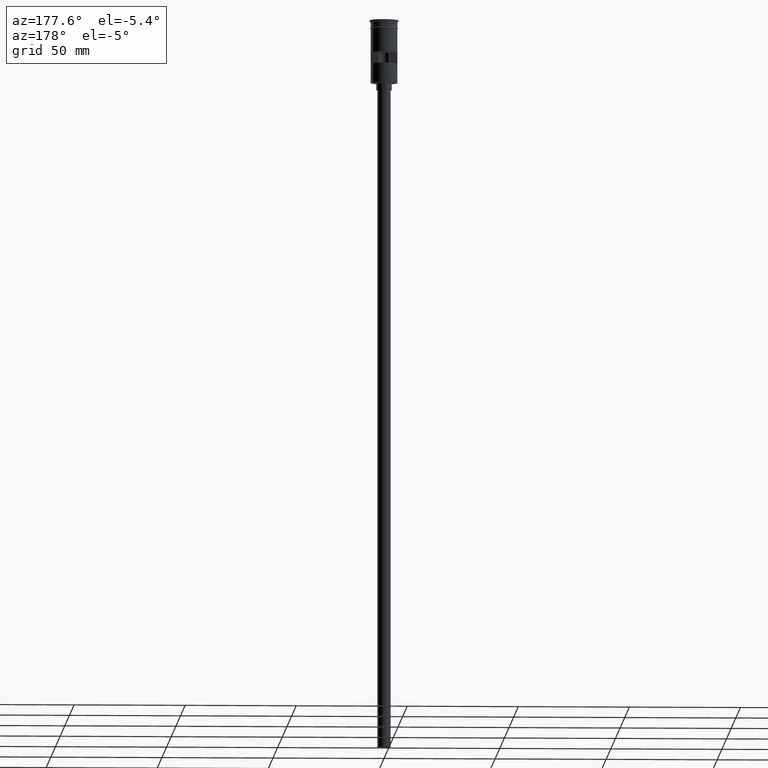
[diagram: clean part render]
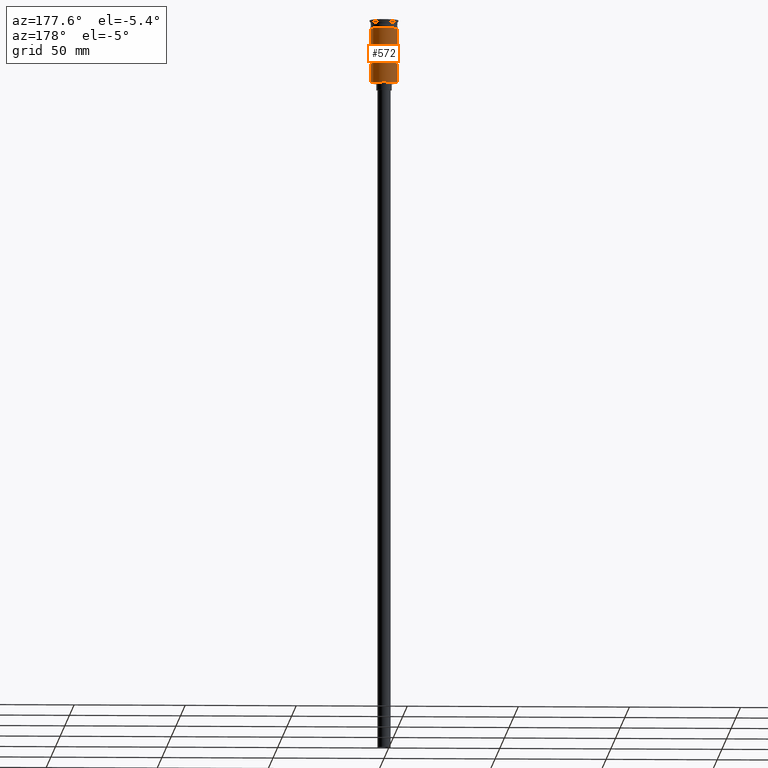
[diagram: same view with one face highlighted and labeled with its STEP entity id]
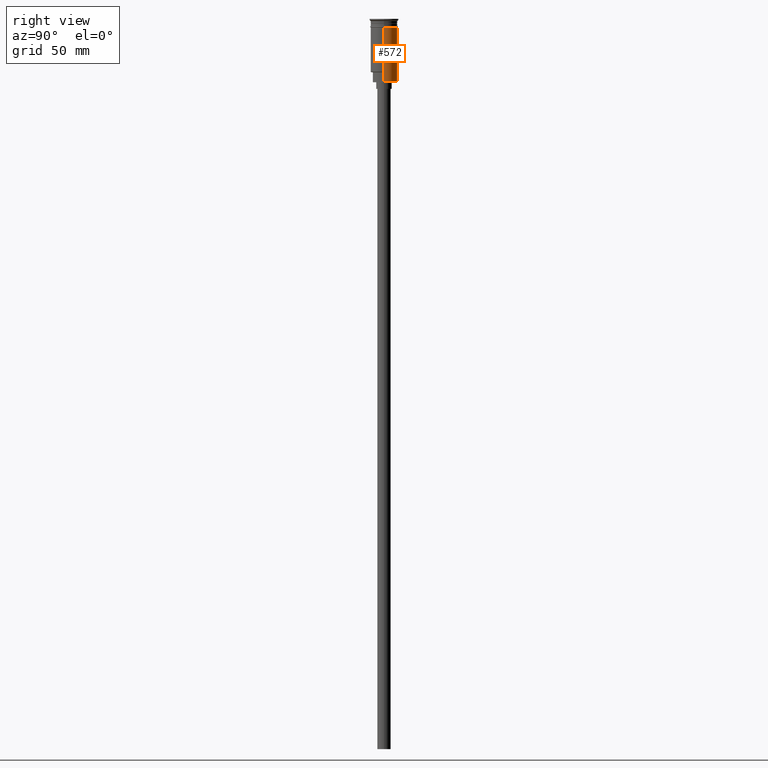
[diagram: same view with one face highlighted and labeled with its STEP entity id]
A machine part, auxiliary view. The second image highlights one B-rep face of the part: STEP entity #572.
A second angle (right view) of the same face is appended — the face is thin or edge-on in the first view.
In plain terms, the highlighted cylindrical surface (edge-blend (fillet) strip) has radius 6 mm, axis along (-0, -0, 1).
Its self-contained STEP definition (entity closure, byte-faithful):
#35 = AXIS2_PLACEMENT_3D ( 'NONE', #405, #164, #150 ) ;
#39 = CARTESIAN_POINT ( 'NONE',  ( 5.969924622639712908, 0.5999999999999999778, -19.50000000000000355 ) ) ;
#61 = LINE ( 'NONE', #1437, #532 ) ;
#66 = VERTEX_POINT ( 'NONE', #1083 ) ;
#82 = VECTOR ( 'NONE', #642, 1000.000000000000000 ) ;
#87 = CIRCLE ( 'NONE', #1255, 5.999999999999997335 ) ;
#143 = DIRECTION ( 'NONE',  ( -0.000000000000000000, -0.000000000000000000, 1.000000000000000000 ) ) ;
#147 = DIRECTION ( 'NONE',  ( -1.000000000000000000, 0.000000000000000000, 0.000000000000000000 ) ) ;
#150 = DIRECTION ( 'NONE',  ( 1.000000000000000000, 0.000000000000000000, 0.000000000000000000 ) ) ;
#164 = DIRECTION ( 'NONE',  ( -0.000000000000000000, -0.000000000000000000, 1.000000000000000000 ) ) ;
#174 = LINE ( 'NONE', #1127, #1022 ) ;
#180 = EDGE_CURVE ( 'NONE', #566, #1308, #635, .T. ) ;
#187 = CARTESIAN_POINT ( 'NONE',  ( 0.000000000000000000, 0.000000000000000000, -28.29999999999999716 ) ) ;
#198 = VERTEX_POINT ( 'NONE', #1503 ) ;
#201 = EDGE_LOOP ( 'NONE', ( #216, #831, #897, #745 ) ) ;
#216 = ORIENTED_EDGE ( 'NONE', *, *, #419, .F. ) ;
#303 = EDGE_LOOP ( 'NONE', ( #1314, #1590, #1077, #308, #1229, #393 ) ) ;
#308 = ORIENTED_EDGE ( 'NONE', *, *, #1275, .F. ) ;
#310 = CARTESIAN_POINT ( 'NONE',  ( -5.999999999999994671, 0.000000000000000000, -28.29999999999999716 ) ) ;
#393 = ORIENTED_EDGE ( 'NONE', *, *, #1365, .T. ) ;
#405 = CARTESIAN_POINT ( 'NONE',  ( 0.000000000000000000, 0.000000000000000000, 0.000000000000000000 ) ) ;
#419 = EDGE_CURVE ( 'NONE', #1172, #566, #1110, .T. ) ;
#433 = FACE_BOUND ( 'NONE', #201, .T. ) ;
#455 = VECTOR ( 'NONE', #1243, 1000.000000000000000 ) ;
#532 = VECTOR ( 'NONE', #835, 1000.000000000000000 ) ;
#545 = VERTEX_POINT ( 'NONE', #1016 ) ;
#566 = VERTEX_POINT ( 'NONE', #39 ) ;
#572 = ADVANCED_FACE ( 'NONE', ( #433, #1276 ), #1166, .T. ) ;
#582 = AXIS2_PLACEMENT_3D ( 'NONE', #1137, #1012, #147 ) ;
#635 = CIRCLE ( 'NONE', #582, 5.999999999999997335 ) ;
#642 = DIRECTION ( 'NONE',  ( 0.000000000000000000, 0.000000000000000000, -1.000000000000000000 ) ) ;
#656 = DIRECTION ( 'NONE',  ( -0.000000000000000000, -3.212450881438533227E-16, -1.000000000000000000 ) ) ;
#676 = EDGE_CURVE ( 'NONE', #66, #1035, #61, .T. ) ;
#697 = DIRECTION ( 'NONE',  ( 0.000000000000000000, 0.000000000000000000, 1.000000000000000000 ) ) ;
#704 = DIRECTION ( 'NONE',  ( -1.000000000000000000, 0.000000000000000000, 0.000000000000000000 ) ) ;
#734 = CARTESIAN_POINT ( 'NONE',  ( -6.000000000000000000, 7.347880794884119736E-16, -3.799999999999998490 ) ) ;
#745 = ORIENTED_EDGE ( 'NONE', *, *, #180, .F. ) ;
#759 = CARTESIAN_POINT ( 'NONE',  ( 5.999999999999997335, 0.000000000000000000, 0.000000000000000000 ) ) ;
#768 = CARTESIAN_POINT ( 'NONE',  ( 0.000000000000000000, 0.000000000000000000, -14.49999999999999822 ) ) ;
#783 = VERTEX_POINT ( 'NONE', #310 ) ;
#802 = CARTESIAN_POINT ( 'NONE',  ( 5.969924622639712908, 0.5999999999999999778, -14.49999999999999822 ) ) ;
#831 = ORIENTED_EDGE ( 'NONE', *, *, #1151, .F. ) ;
#835 = DIRECTION ( 'NONE',  ( -0.000000000000000000, -0.000000000000000000, 1.000000000000000000 ) ) ;
#844 = LINE ( 'NONE', #1335, #1589 ) ;
#871 = CARTESIAN_POINT ( 'NONE',  ( 5.969924622639716461, 0.5999999999999997558, 0.000000000000000000 ) ) ;
#897 = ORIENTED_EDGE ( 'NONE', *, *, #1518, .F. ) ;
#928 = CARTESIAN_POINT ( 'NONE',  ( 6.000000000000000000, 0.000000000000000000, -3.799999999999998490 ) ) ;
#972 = VERTEX_POINT ( 'NONE', #1181 ) ;
#998 = LINE ( 'NONE', #1290, #1532 ) ;
#1012 = DIRECTION ( 'NONE',  ( 0.000000000000000000, 0.000000000000000000, 1.000000000000000000 ) ) ;
#1014 = DIRECTION ( 'NONE',  ( -0.000000000000000000, -0.000000000000000000, 1.000000000000000000 ) ) ;
#1016 = CARTESIAN_POINT ( 'NONE',  ( 5.999999999999997335, 7.347880794884115792E-16, -23.79999999999995453 ) ) ;
#1022 = VECTOR ( 'NONE', #1014, 1000.000000000000000 ) ;
#1030 = EDGE_CURVE ( 'NONE', #783, #66, #844, .T. ) ;
#1035 = VERTEX_POINT ( 'NONE', #734 ) ;
#1077 = ORIENTED_EDGE ( 'NONE', *, *, #1433, .F. ) ;
#1083 = CARTESIAN_POINT ( 'NONE',  ( -5.999999999999994671, 0.000000000000000000, -23.79999999999995453 ) ) ;
#1110 = LINE ( 'NONE', #871, #82 ) ;
#1127 = CARTESIAN_POINT ( 'NONE',  ( -5.969924622639716461, 0.5999999999999997558, 0.000000000000000000 ) ) ;
#1137 = CARTESIAN_POINT ( 'NONE',  ( 0.000000000000000000, 0.000000000000000000, -19.50000000000000355 ) ) ;
#1150 = VERTEX_POINT ( 'NONE', #928 ) ;
#1151 = EDGE_CURVE ( 'NONE', #972, #1172, #1321, .T. ) ;
#1160 = EDGE_CURVE ( 'NONE', #198, #545, #998, .T. ) ;
#1166 = CYLINDRICAL_SURFACE ( 'NONE', #35, 5.999999999999997335 ) ;
#1172 = VERTEX_POINT ( 'NONE', #802 ) ;
#1181 = CARTESIAN_POINT ( 'NONE',  ( -5.969924622639716461, 0.5999999999999999778, -14.49999999999999822 ) ) ;
#1200 = DIRECTION ( 'NONE',  ( -0.000000000000000000, -0.000000000000000000, 1.000000000000000000 ) ) ;
#1229 = ORIENTED_EDGE ( 'NONE', *, *, #1160, .F. ) ;
#1243 = DIRECTION ( 'NONE',  ( -0.000000000000000000, -0.000000000000000000, 1.000000000000000000 ) ) ;
#1254 = DIRECTION ( 'NONE',  ( 0.000000000000000000, -1.000000000000000000, 2.891205793294679805E-16 ) ) ;
#1255 = AXIS2_PLACEMENT_3D ( 'NONE', #187, #697, #704 ) ;
#1275 = EDGE_CURVE ( 'NONE', #545, #1150, #1362, .T. ) ;
#1276 = FACE_OUTER_BOUND ( 'NONE', #303, .T. ) ;
#1290 = CARTESIAN_POINT ( 'NONE',  ( 5.999999999999994671, 7.347880794884112834E-16, -28.50000000000000000 ) ) ;
#1308 = VERTEX_POINT ( 'NONE', #1564 ) ;
#1314 = ORIENTED_EDGE ( 'NONE', *, *, #1030, .T. ) ;
#1321 = CIRCLE ( 'NONE', #1454, 5.999999999999997335 ) ;
#1335 = CARTESIAN_POINT ( 'NONE',  ( -5.999999999999994671, 0.000000000000000000, -28.50000000000000000 ) ) ;
#1340 = CARTESIAN_POINT ( 'NONE',  ( 0.000000000000000000, 0.000000000000000000, -3.799999999999998490 ) ) ;
#1359 = DIRECTION ( 'NONE',  ( 1.000000000000000000, 0.000000000000000000, 0.000000000000000000 ) ) ;
#1362 = LINE ( 'NONE', #759, #455 ) ;
#1365 = EDGE_CURVE ( 'NONE', #198, #783, #87, .T. ) ;
#1403 = AXIS2_PLACEMENT_3D ( 'NONE', #1340, #1474, #1359 ) ;
#1433 = EDGE_CURVE ( 'NONE', #1150, #1035, #1562, .T. ) ;
#1437 = CARTESIAN_POINT ( 'NONE',  ( -5.999999999999997335, 7.347880794884116778E-16, 0.000000000000000000 ) ) ;
#1454 = AXIS2_PLACEMENT_3D ( 'NONE', #768, #656, #1254 ) ;
#1474 = DIRECTION ( 'NONE',  ( -0.000000000000000000, -0.000000000000000000, 1.000000000000000000 ) ) ;
#1503 = CARTESIAN_POINT ( 'NONE',  ( 5.999999999999994671, 7.347880794884112834E-16, -28.29999999999999716 ) ) ;
#1518 = EDGE_CURVE ( 'NONE', #1308, #972, #174, .T. ) ;
#1532 = VECTOR ( 'NONE', #143, 1000.000000000000000 ) ;
#1562 = CIRCLE ( 'NONE', #1403, 6.000000000000000000 ) ;
#1564 = CARTESIAN_POINT ( 'NONE',  ( -5.969924622639716461, 0.5999999999999997558, -19.50000000000000355 ) ) ;
#1589 = VECTOR ( 'NONE', #1200, 1000.000000000000000 ) ;
#1590 = ORIENTED_EDGE ( 'NONE', *, *, #676, .T. ) ;